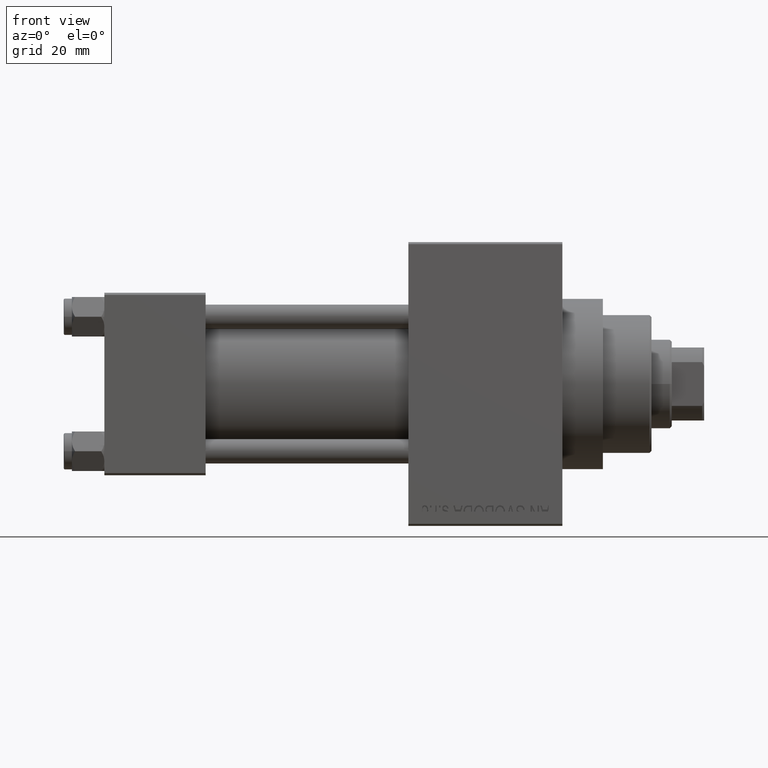
[diagram: clean part render]
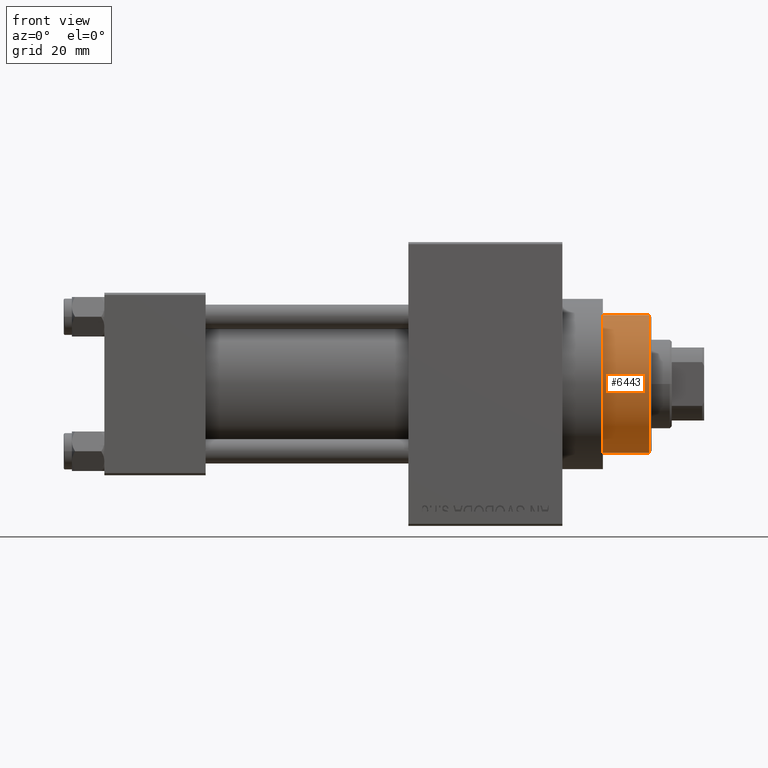
[diagram: same view with one face highlighted and labeled with its STEP entity id]
A machine part, front view. The second image highlights one B-rep face of the part: STEP entity #6443.
In plain terms, the highlighted cylindrical surface (partial cylindrical patch) has radius 17 mm, axis along (-1, 0, 0).
Its self-contained STEP definition (entity closure, byte-faithful):
#146 = DIRECTION ( 'NONE',  ( -0.000000000000000000, -0.000000000000000000, -1.000000000000000000 ) ) ;
#3176 = CIRCLE ( 'NONE', #14211, 17.00000000000000000 ) ;
#3802 = VERTEX_POINT ( 'NONE', #19062 ) ;
#3837 = EDGE_CURVE ( 'NONE', #23138, #13141, #27810, .T. ) ;
#4802 = VERTEX_POINT ( 'NONE', #22729 ) ;
#5677 = CYLINDRICAL_SURFACE ( 'NONE', #26392, 17.00000000000000000 ) ;
#6443 = ADVANCED_FACE ( 'NONE', ( #13337 ), #5677, .T. ) ;
#7109 = CARTESIAN_POINT ( 'NONE',  ( -17.00000000000000000, 0.000000000000000000, 43.25999999999999801 ) ) ;
#9057 = EDGE_LOOP ( 'NONE', ( #48150, #10323, #22251, #33337 ) ) ;
#10323 = ORIENTED_EDGE ( 'NONE', *, *, #35162, .T. ) ;
#10985 = DIRECTION ( 'NONE',  ( 0.000000000000000000, 0.000000000000000000, -1.000000000000000000 ) ) ;
#11665 = CARTESIAN_POINT ( 'NONE',  ( 0.000000000000000000, 0.000000000000000000, 43.25999999999999801 ) ) ;
#12631 = EDGE_CURVE ( 'NONE', #4802, #3802, #3176, .T. ) ;
#13141 = VERTEX_POINT ( 'NONE', #7109 ) ;
#13337 = FACE_OUTER_BOUND ( 'NONE', #9057, .T. ) ;
#14211 = AXIS2_PLACEMENT_3D ( 'NONE', #48499, #10985, #14716 ) ;
#14716 = DIRECTION ( 'NONE',  ( 1.000000000000000000, 0.000000000000000000, 0.000000000000000000 ) ) ;
#14743 = VECTOR ( 'NONE', #41759, 1000.000000000000000 ) ;
#16086 = DIRECTION ( 'NONE',  ( -0.000000000000000000, -0.000000000000000000, -1.000000000000000000 ) ) ;
#18677 = CARTESIAN_POINT ( 'NONE',  ( 17.00000000000000000, 2.081899558550500280E-15, 43.25999999999999801 ) ) ;
#19062 = CARTESIAN_POINT ( 'NONE',  ( 17.00000000000000000, 2.081899558550500280E-15, 54.76000000000001222 ) ) ;
#20736 = AXIS2_PLACEMENT_3D ( 'NONE', #11665, #23983, #30654 ) ;
#21555 = VECTOR ( 'NONE', #146, 1000.000000000000000 ) ;
#21898 = LINE ( 'NONE', #48766, #21555 ) ;
#22251 = ORIENTED_EDGE ( 'NONE', *, *, #3837, .T. ) ;
#22729 = CARTESIAN_POINT ( 'NONE',  ( -17.00000000000000000, 0.000000000000000000, 54.76000000000001222 ) ) ;
#23138 = VERTEX_POINT ( 'NONE', #18677 ) ;
#23983 = DIRECTION ( 'NONE',  ( 0.000000000000000000, 0.000000000000000000, 1.000000000000000000 ) ) ;
#26392 = AXIS2_PLACEMENT_3D ( 'NONE', #35792, #16086, #28158 ) ;
#27810 = CIRCLE ( 'NONE', #20736, 17.00000000000000000 ) ;
#28158 = DIRECTION ( 'NONE',  ( -1.000000000000000000, 0.000000000000000000, 0.000000000000000000 ) ) ;
#30654 = DIRECTION ( 'NONE',  ( 1.000000000000000000, 0.000000000000000000, 0.000000000000000000 ) ) ;
#33337 = ORIENTED_EDGE ( 'NONE', *, *, #47232, .F. ) ;
#33877 = LINE ( 'NONE', #45230, #14743 ) ;
#35162 = EDGE_CURVE ( 'NONE', #3802, #23138, #33877, .T. ) ;
#35792 = CARTESIAN_POINT ( 'NONE',  ( 0.000000000000000000, 0.000000000000000000, 55.26000000000000512 ) ) ;
#41759 = DIRECTION ( 'NONE',  ( -0.000000000000000000, -0.000000000000000000, -1.000000000000000000 ) ) ;
#45230 = CARTESIAN_POINT ( 'NONE',  ( 17.00000000000000000, 2.081899558550500280E-15, 55.26000000000000512 ) ) ;
#47232 = EDGE_CURVE ( 'NONE', #4802, #13141, #21898, .T. ) ;
#48150 = ORIENTED_EDGE ( 'NONE', *, *, #12631, .T. ) ;
#48499 = CARTESIAN_POINT ( 'NONE',  ( 0.000000000000000000, 0.000000000000000000, 54.76000000000001222 ) ) ;
#48766 = CARTESIAN_POINT ( 'NONE',  ( -17.00000000000000000, 0.000000000000000000, 55.26000000000000512 ) ) ;